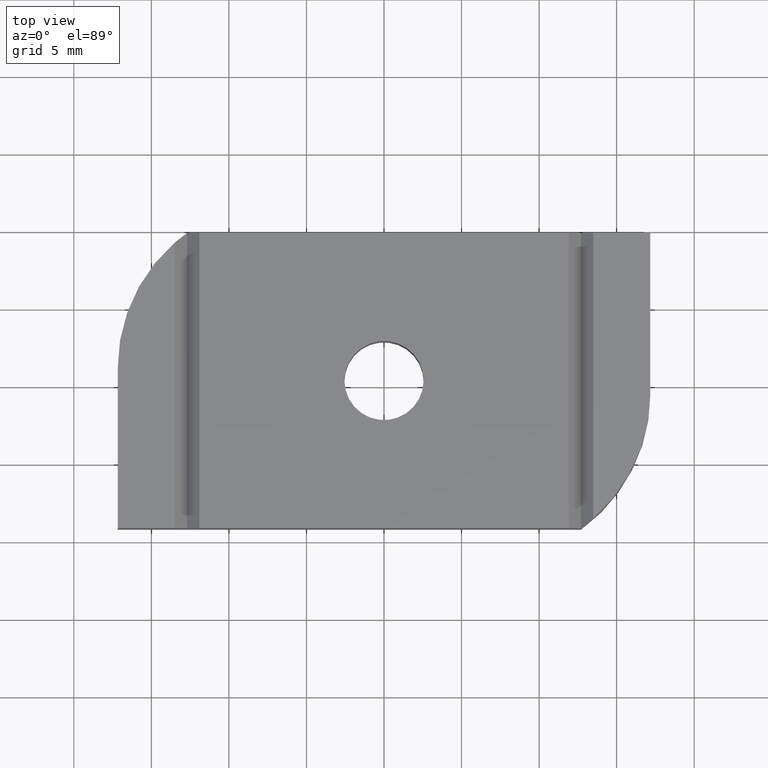
[diagram: clean part render]
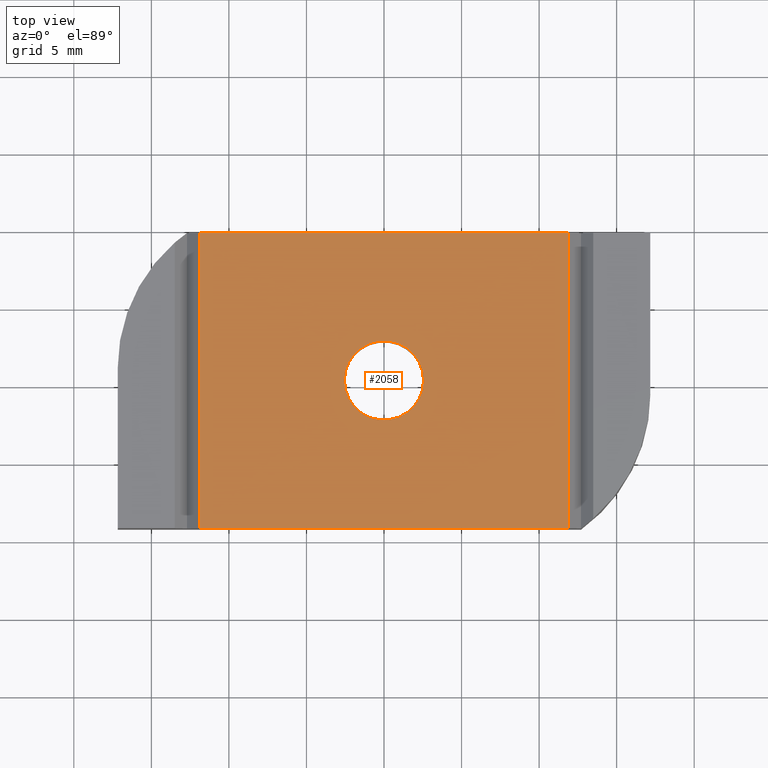
[diagram: same view with one face highlighted and labeled with its STEP entity id]
A machine part, top view. The second image highlights one B-rep face of the part: STEP entity #2058.
In plain terms, the highlighted planar face has unit normal (-0, 0, -1).
Its self-contained STEP definition (entity closure, byte-faithful):
#194 = EDGE_CURVE ( 'NONE', #1015, #1012, #742, .T. ) ;
#195 = EDGE_CURVE ( 'NONE', #1011, #1104, #1310, .T. ) ;
#200 = EDGE_CURVE ( 'NONE', #1015, #939, #615, .T. ) ;
#251 = EDGE_LOOP ( 'NONE', ( #598, #593 ) ) ;
#259 = EDGE_LOOP ( 'NONE', ( #596, #599, #581, #605 ) ) ;
#277 = AXIS2_PLACEMENT_3D ( 'NONE', #1130, #962, #963 ) ;
#386 = DIRECTION ( 'NONE',  ( -1.000000000000000000, 0.0000000000000000000, 0.0000000000000000000 ) ) ;
#389 = DIRECTION ( 'NONE',  ( -0.0000000000000000000, 0.0000000000000000000, -1.000000000000000000 ) ) ;
#392 = CARTESIAN_POINT ( 'NONE',  ( 0.2518181818181817700, -0.03099999999999995500, 0.1189999999999999900 ) ) ;
#420 = PLANE ( 'NONE',  #676 ) ;
#581 = ORIENTED_EDGE ( 'NONE', *, *, #200, .T. ) ;
#593 = ORIENTED_EDGE ( 'NONE', *, *, #195, .F. ) ;
#596 = ORIENTED_EDGE ( 'NONE', *, *, #1973, .T. ) ;
#598 = ORIENTED_EDGE ( 'NONE', *, *, #755, .F. ) ;
#599 = ORIENTED_EDGE ( 'NONE', *, *, #194, .F. ) ;
#605 = ORIENTED_EDGE ( 'NONE', *, *, #1550, .T. ) ;
#615 = LINE ( 'NONE', #952, #617 ) ;
#617 = VECTOR ( 'NONE', #1041, 39.37007874015748100 ) ;
#632 = CIRCLE ( 'NONE', #277, 0.1004999999999995200 ) ;
#676 = AXIS2_PLACEMENT_3D ( 'NONE', #392, #389, #386 ) ;
#742 = LINE ( 'NONE', #937, #745 ) ;
#745 = VECTOR ( 'NONE', #996, 39.37007874015748100 ) ;
#755 = EDGE_CURVE ( 'NONE', #1104, #1011, #632, .T. ) ;
#787 = DIRECTION ( 'NONE',  ( 1.000000000000000000, 0.0000000000000000000, 0.0000000000000000000 ) ) ;
#788 = CARTESIAN_POINT ( 'NONE',  ( -0.6760000000000001600, -0.3750000000000000600, 0.1189999999999999900 ) ) ;
#789 = DIRECTION ( 'NONE',  ( -0.0000000000000000000, -1.000000000000000000, -0.0000000000000000000 ) ) ;
#790 = CARTESIAN_POINT ( 'NONE',  ( -0.4687499999999999400, 0.3750000000000000600, 0.1189999999999999900 ) ) ;
#937 = CARTESIAN_POINT ( 'NONE',  ( 0.4687499999999999400, 0.3750000000000000600, 0.1189999999999999900 ) ) ;
#939 = VERTEX_POINT ( 'NONE', #979 ) ;
#951 = DIRECTION ( 'NONE',  ( -0.0000000000000000000, -0.0000000000000000000, 1.000000000000000000 ) ) ;
#952 = CARTESIAN_POINT ( 'NONE',  ( -0.5000000000000000000, 0.3750000000000000600, 0.1189999999999999900 ) ) ;
#962 = DIRECTION ( 'NONE',  ( -0.0000000000000000000, -0.0000000000000000000, 1.000000000000000000 ) ) ;
#963 = DIRECTION ( 'NONE',  ( 1.000000000000000000, 0.0000000000000000000, 0.0000000000000000000 ) ) ;
#979 = CARTESIAN_POINT ( 'NONE',  ( -0.4687499999999999400, 0.3750000000000000600, 0.1189999999999999900 ) ) ;
#995 = CARTESIAN_POINT ( 'NONE',  ( 0.0000000000000000000, 0.0000000000000000000, 0.1190000000000000500 ) ) ;
#996 = DIRECTION ( 'NONE',  ( -0.0000000000000000000, -1.000000000000000000, -0.0000000000000000000 ) ) ;
#1011 = VERTEX_POINT ( 'NONE', #1096 ) ;
#1012 = VERTEX_POINT ( 'NONE', #1164 ) ;
#1015 = VERTEX_POINT ( 'NONE', #1180 ) ;
#1019 = VERTEX_POINT ( 'NONE', #1077 ) ;
#1041 = DIRECTION ( 'NONE',  ( -1.000000000000000000, -0.0000000000000000000, -0.0000000000000000000 ) ) ;
#1077 = CARTESIAN_POINT ( 'NONE',  ( -0.4687499999999999400, -0.3750000000000000600, 0.1189999999999999900 ) ) ;
#1096 = CARTESIAN_POINT ( 'NONE',  ( -0.1004999999999995200, 1.230770033143085600E-017, 0.1190000000000000500 ) ) ;
#1104 = VERTEX_POINT ( 'NONE', #1174 ) ;
#1130 = CARTESIAN_POINT ( 'NONE',  ( 0.0000000000000000000, 0.0000000000000000000, 0.1190000000000000500 ) ) ;
#1150 = DIRECTION ( 'NONE',  ( 1.000000000000000000, 0.0000000000000000000, 0.0000000000000000000 ) ) ;
#1164 = CARTESIAN_POINT ( 'NONE',  ( 0.4687499999999999400, -0.3750000000000000600, 0.1189999999999999900 ) ) ;
#1174 = CARTESIAN_POINT ( 'NONE',  ( 0.1004999999999995200, 0.0000000000000000000, 0.1190000000000000500 ) ) ;
#1180 = CARTESIAN_POINT ( 'NONE',  ( 0.4687499999999999400, 0.3750000000000000600, 0.1189999999999999900 ) ) ;
#1310 = CIRCLE ( 'NONE', #1334, 0.1004999999999995200 ) ;
#1334 = AXIS2_PLACEMENT_3D ( 'NONE', #995, #951, #1150 ) ;
#1550 = EDGE_CURVE ( 'NONE', #939, #1019, #1756, .T. ) ;
#1756 = LINE ( 'NONE', #790, #1758 ) ;
#1758 = VECTOR ( 'NONE', #789, 39.37007874015748100 ) ;
#1759 = LINE ( 'NONE', #788, #1760 ) ;
#1760 = VECTOR ( 'NONE', #787, 39.37007874015748100 ) ;
#1763 = FACE_OUTER_BOUND ( 'NONE', #259, .T. ) ;
#1765 = FACE_BOUND ( 'NONE', #251, .T. ) ;
#1973 = EDGE_CURVE ( 'NONE', #1019, #1012, #1759, .T. ) ;
#2058 = ADVANCED_FACE ( 'NONE', ( #1765, #1763 ), #420, .F. ) ;